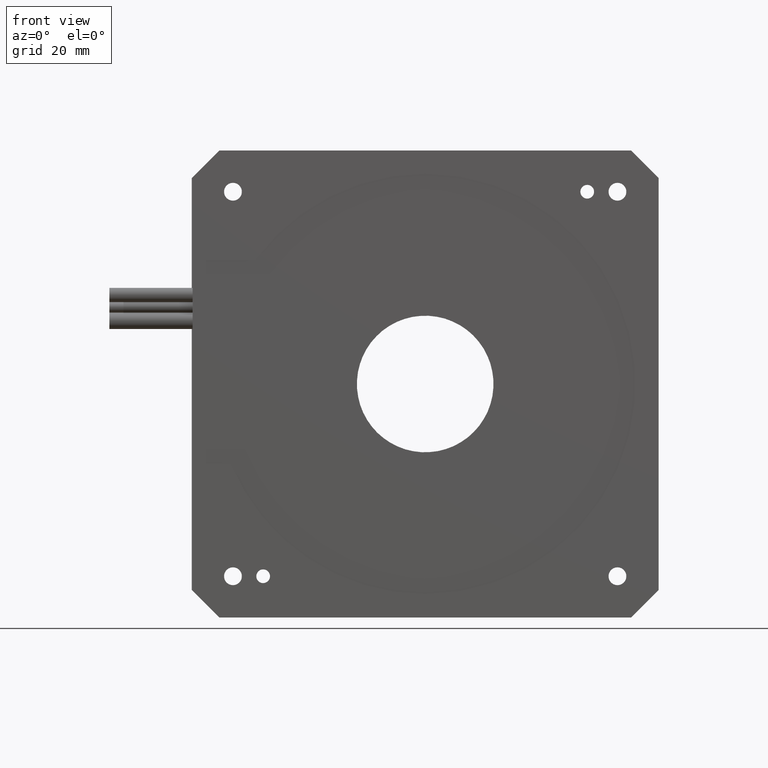
[diagram: clean part render]
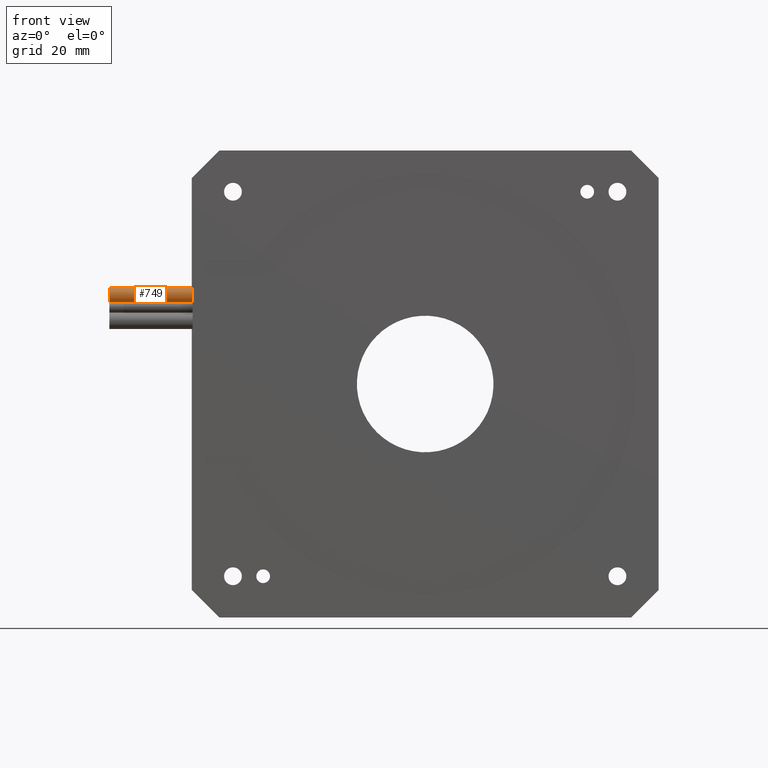
[diagram: same view with one face highlighted and labeled with its STEP entity id]
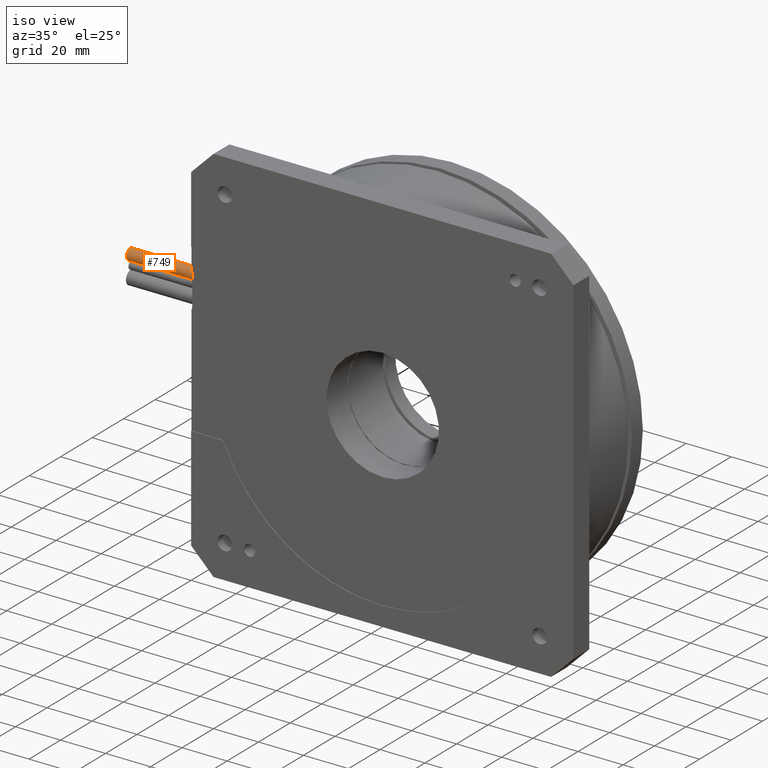
[diagram: same view with one face highlighted and labeled with its STEP entity id]
A machine part, front view. The second image highlights one B-rep face of the part: STEP entity #749.
A second angle (iso view) of the same face is appended — the face is thin or edge-on in the first view.
In plain terms, the highlighted cylindrical surface (edge-blend (fillet) strip) has radius 2.6 mm, axis along (1, -0, -0).
Its self-contained STEP definition (entity closure, byte-faithful):
#453 = LINE ( 'NONE', #18864, #22017 ) ;
#749 = ADVANCED_FACE ( 'NONE', ( #5277 ), #6932, .T. ) ;
#1186 = AXIS2_PLACEMENT_3D ( 'NONE', #18471, #11415, #16499 ) ;
#2210 = CIRCLE ( 'NONE', #16807, 2.600000000000005000 ) ;
#2349 = VERTEX_POINT ( 'NONE', #11350 ) ;
#2725 = DIRECTION ( 'NONE',  ( 1.000000000000000000, -0.0000000000000000000, -0.0000000000000000000 ) ) ;
#3840 = VERTEX_POINT ( 'NONE', #21415 ) ;
#4601 = DIRECTION ( 'NONE',  ( 1.000000000000000000, -0.0000000000000000000, -0.0000000000000000000 ) ) ;
#5277 = FACE_OUTER_BOUND ( 'NONE', #17444, .T. ) ;
#5636 = EDGE_CURVE ( 'NONE', #18285, #2349, #6782, .T. ) ;
#6782 = LINE ( 'NONE', #12943, #21354 ) ;
#6811 = DIRECTION ( 'NONE',  ( 0.0000000000000000000, 0.0000000000000000000, -1.000000000000000000 ) ) ;
#6932 = CYLINDRICAL_SURFACE ( 'NONE', #1186, 2.600000000000005000 ) ;
#7851 = ORIENTED_EDGE ( 'NONE', *, *, #5636, .T. ) ;
#8164 = CARTESIAN_POINT ( 'NONE',  ( -30.00000000000000000, 4.500000000000000900, 119.9899999999999900 ) ) ;
#10175 = EDGE_CURVE ( 'NONE', #12514, #3840, #453, .T. ) ;
#11123 = CIRCLE ( 'NONE', #19082, 2.600000000000005000 ) ;
#11350 = CARTESIAN_POINT ( 'NONE',  ( 0.3000000000000016500, 4.500000000000000900, 114.7899999999999900 ) ) ;
#11415 = DIRECTION ( 'NONE',  ( 1.000000000000000000, -0.0000000000000000000, -0.0000000000000000000 ) ) ;
#11490 = EDGE_CURVE ( 'NONE', #12514, #18285, #2210, .T. ) ;
#12022 = EDGE_CURVE ( 'NONE', #3840, #2349, #11123, .T. ) ;
#12514 = VERTEX_POINT ( 'NONE', #8164 ) ;
#12943 = CARTESIAN_POINT ( 'NONE',  ( -30.00000000000000000, 4.500000000000000900, 114.7899999999999900 ) ) ;
#13431 = CARTESIAN_POINT ( 'NONE',  ( 0.3000000000000016500, 4.500000000000000900, 117.3900000000000000 ) ) ;
#13757 = DIRECTION ( 'NONE',  ( 0.0000000000000000000, 0.0000000000000000000, -1.000000000000000000 ) ) ;
#16499 = DIRECTION ( 'NONE',  ( 0.0000000000000000000, 0.0000000000000000000, -1.000000000000000000 ) ) ;
#16807 = AXIS2_PLACEMENT_3D ( 'NONE', #23104, #22871, #6811 ) ;
#17444 = EDGE_LOOP ( 'NONE', ( #18535, #18907, #7851, #20407 ) ) ;
#18285 = VERTEX_POINT ( 'NONE', #19647 ) ;
#18471 = CARTESIAN_POINT ( 'NONE',  ( -30.00000000000000000, 4.500000000000000900, 117.3900000000000000 ) ) ;
#18535 = ORIENTED_EDGE ( 'NONE', *, *, #10175, .F. ) ;
#18864 = CARTESIAN_POINT ( 'NONE',  ( -30.00000000000000000, 4.500000000000000900, 119.9899999999999900 ) ) ;
#18907 = ORIENTED_EDGE ( 'NONE', *, *, #11490, .T. ) ;
#19082 = AXIS2_PLACEMENT_3D ( 'NONE', #13431, #2725, #13757 ) ;
#19647 = CARTESIAN_POINT ( 'NONE',  ( -30.00000000000000000, 4.500000000000000900, 114.7899999999999900 ) ) ;
#20407 = ORIENTED_EDGE ( 'NONE', *, *, #12022, .F. ) ;
#20551 = DIRECTION ( 'NONE',  ( 1.000000000000000000, -0.0000000000000000000, -0.0000000000000000000 ) ) ;
#21354 = VECTOR ( 'NONE', #20551, 1000.000000000000000 ) ;
#21415 = CARTESIAN_POINT ( 'NONE',  ( 0.3000000000000016500, 4.500000000000000900, 119.9899999999999900 ) ) ;
#22017 = VECTOR ( 'NONE', #4601, 1000.000000000000000 ) ;
#22871 = DIRECTION ( 'NONE',  ( 1.000000000000000000, -0.0000000000000000000, -0.0000000000000000000 ) ) ;
#23104 = CARTESIAN_POINT ( 'NONE',  ( -30.00000000000000000, 4.500000000000000900, 117.3900000000000000 ) ) ;